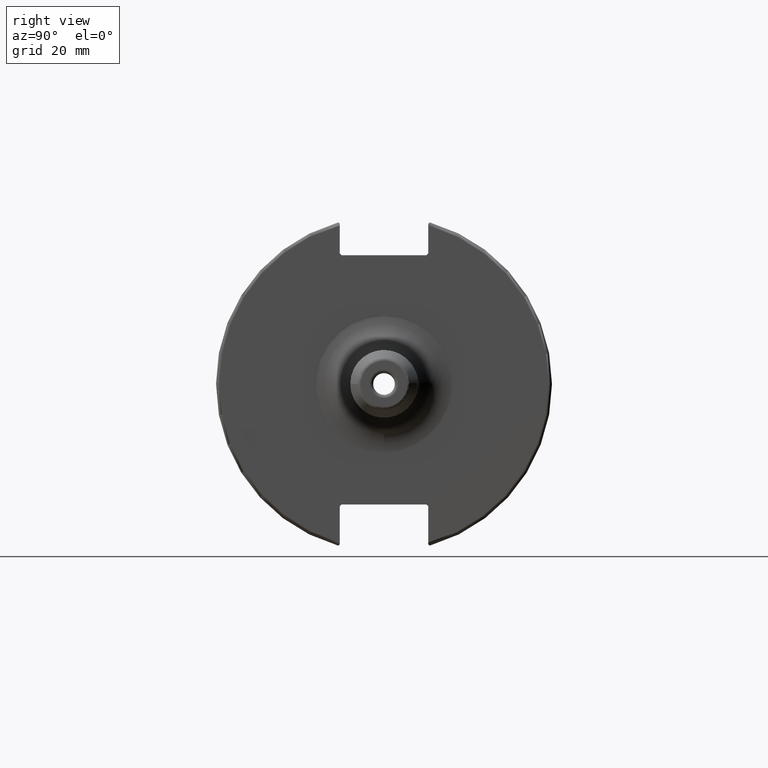
[diagram: clean part render]
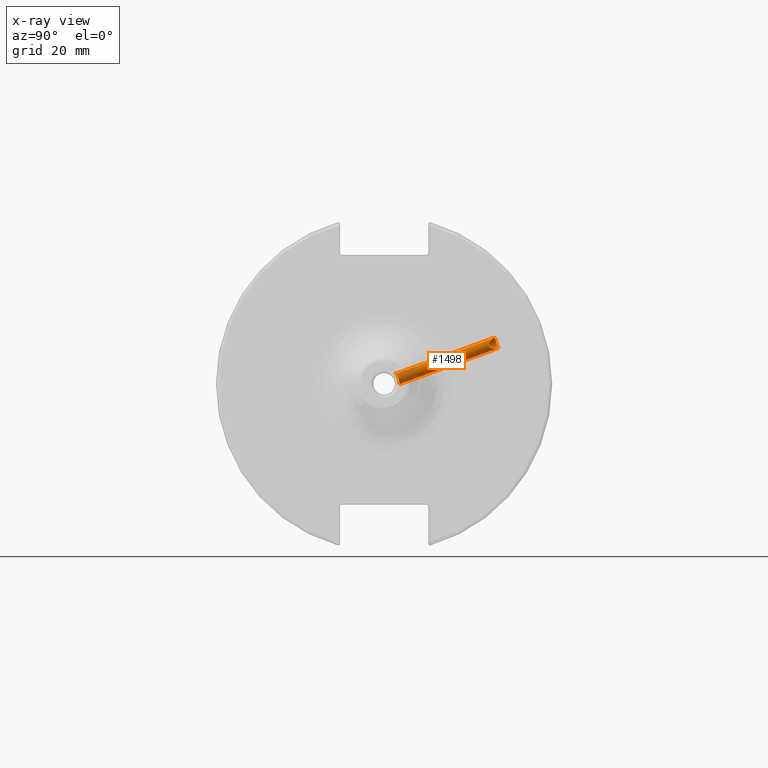
[diagram: x-ray — body ghosted, one internal face saturated and labeled with its STEP entity id]
A machine part, right view, then the same camera in x-ray: the body is ghosted and one INTERNAL B-rep face — a face not visible from any outside direction — is saturated and labeled: STEP entity #1498.
In plain terms, the highlighted cylindrical surface (bore or boss wall) has radius 1.621 mm, axis along (-0, 0.9397, 0.342).
Its self-contained STEP definition (entity closure, byte-faithful):
#108=CYLINDRICAL_SURFACE('',#1643,1.621);
#150=FACE_OUTER_BOUND('',#245,.T.);
#245=EDGE_LOOP('',(#1148,#1149,#1150,#1151,#1152,#1153));
#422=LINE('',#2688,#514);
#514=VECTOR('',#1905,1.621);
#581=B_SPLINE_CURVE_WITH_KNOTS('',3,(#2376,#2377,#2378,#2379,#2380,#2381,
#2382,#2383,#2384,#2385,#2386,#2387,#2388,#2389,#2390,#2391,#2392,#2393,
#2394,#2395,#2396,#2397,#2398,#2399,#2400,#2401),.UNSPECIFIED.,.F.,.F.,
(4,2,2,2,2,2,2,2,2,2,2,2,4),(0.,0.0616856599545253,0.123371319909051,0.18501720952834,
0.24666309914763,0.30830898876692,0.36995487838621,0.431640538340735,0.493326198295259,
0.555011858249784,0.61669751820431,0.678343407823599,0.739989297442889),
 .UNSPECIFIED.);
#582=B_SPLINE_CURVE_WITH_KNOTS('',3,(#2402,#2403,#2404,#2405,#2406,#2407,
#2408,#2409,#2410,#2411),.UNSPECIFIED.,.F.,.F.,(4,2,2,2,4),(0.739989297442889,
0.801635187062178,0.863281076681467,0.924966736635993,0.986652396590518),
 .UNSPECIFIED.);
#592=B_SPLINE_CURVE_WITH_KNOTS('',3,(#2644,#2645,#2646,#2647,#2648,#2649,
#2650,#2651,#2652,#2653,#2654,#2655,#2656,#2657,#2658,#2659,#2660,#2661,
#2662,#2663,#2664,#2665,#2666,#2667,#2668,#2669,#2670,#2671,#2672,#2673,
#2674,#2675),.UNSPECIFIED.,.F.,.F.,(4,2,2,2,2,2,2,2,2,2,2,2,2,2,2,4),(0.,
0.0884839677067705,0.176967935413541,0.264588928472714,0.292934680202631,
0.321280431932548,0.349626183662465,0.377971935392382,0.465592928451555,
0.554076896158326,0.642560863865096,0.674019283137882,0.705477702410669,
0.768394540956241,0.83753256912227,0.892424435682429),.UNSPECIFIED.);
#593=B_SPLINE_CURVE_WITH_KNOTS('',3,(#2676,#2677,#2678,#2679,#2680,#2681,
#2682,#2683,#2684,#2685,#2686,#2687),.UNSPECIFIED.,.F.,.F.,(4,2,2,2,2,4),
(0.892424435682429,0.947316302242587,1.01645433040862,1.07937116895419,
1.11082958822697,1.14228800749976),.UNSPECIFIED.);
#653=VERTEX_POINT('',#2374);
#654=VERTEX_POINT('',#2375);
#685=VERTEX_POINT('',#2642);
#686=VERTEX_POINT('',#2643);
#818=EDGE_CURVE('',#653,#654,#581,.T.);
#819=EDGE_CURVE('',#654,#653,#582,.T.);
#860=EDGE_CURVE('',#685,#686,#592,.T.);
#861=EDGE_CURVE('',#686,#685,#593,.T.);
#862=EDGE_CURVE('',#686,#654,#422,.T.);
#1148=ORIENTED_EDGE('',*,*,#860,.F.);
#1149=ORIENTED_EDGE('',*,*,#861,.F.);
#1150=ORIENTED_EDGE('',*,*,#862,.T.);
#1151=ORIENTED_EDGE('',*,*,#819,.T.);
#1152=ORIENTED_EDGE('',*,*,#818,.T.);
#1153=ORIENTED_EDGE('',*,*,#862,.F.);
#1498=ADVANCED_FACE('',(#150),#108,.F.);
#1643=AXIS2_PLACEMENT_3D('',#2641,#1903,#1904);
#1903=DIRECTION('center_axis',(-1.32999192572579E-16,0.939692620785908,
0.342020143325669));
#1904=DIRECTION('ref_axis',(1.,1.41534784492982E-16,0.));
#1905=DIRECTION('',(1.32999192572579E-16,-0.939692620785908,-0.342020143325669));
#2374=CARTESIAN_POINT('',(11.1341,4.49914969961848,-0.0874755990146017));
#2375=CARTESIAN_POINT('',(9.5131,4.22861679353659,1.53909064496551));
#2376=CARTESIAN_POINT('Ctrl Pts',(11.1341,4.49914969961848,-0.0874755990146017));
#2377=CARTESIAN_POINT('Ctrl Pts',(11.3397188665151,4.49914969961848,-0.087475599014602));
#2378=CARTESIAN_POINT('Ctrl Pts',(11.5576216434319,4.50065676407486,-0.0427920857514131));
#2379=CARTESIAN_POINT('Ctrl Pts',(11.9563617515399,4.49888934556196,0.133179145262921));
#2380=CARTESIAN_POINT('Ctrl Pts',(12.1373837449327,4.49467824604947,0.264037465820437));
#2381=CARTESIAN_POINT('Ctrl Pts',(12.4231642849261,4.46767151345674,0.558329117499045));
#2382=CARTESIAN_POINT('Ctrl Pts',(12.5476417213595,4.44296806180526,0.742015717586782));
#2383=CARTESIAN_POINT('Ctrl Pts',(12.7136582043263,4.35893050950099,1.13590375364647));
#2384=CARTESIAN_POINT('Ctrl Pts',(12.7551,4.29889724688001,1.34599668637541));
#2385=CARTESIAN_POINT('Ctrl Pts',(12.7551,4.15833634019316,1.73218460355561));
#2386=CARTESIAN_POINT('Ctrl Pts',(12.7136582043263,4.0692793533854,1.93171376459301));
#2387=CARTESIAN_POINT('Ctrl Pts',(12.5476417213595,3.88046950415846,2.28746780319715));
#2388=CARTESIAN_POINT('Ctrl Pts',(12.4231642849261,3.7813219754201,2.44405897510784));
#2389=CARTESIAN_POINT('Ctrl Pts',(12.1373837449326,3.61284330551637,2.68685905262126));
#2390=CARTESIAN_POINT('Ctrl Pts',(11.9563617515399,3.53195508781856,2.78980918451002));
#2391=CARTESIAN_POINT('Ctrl Pts',(11.5576216434319,3.42019688199173,2.92574704289858));
#2392=CARTESIAN_POINT('Ctrl Pts',(11.3397188665151,3.39032039495666,2.95900787757331));
#2393=CARTESIAN_POINT('Ctrl Pts',(10.9284811334849,3.39032039495666,2.95900787757331));
#2394=CARTESIAN_POINT('Ctrl Pts',(10.7105783565681,3.42019688199174,2.92574704289858));
#2395=CARTESIAN_POINT('Ctrl Pts',(10.3118382484601,3.53195508781856,2.78980918451001));
#2396=CARTESIAN_POINT('Ctrl Pts',(10.1308162550673,3.61284330551637,2.68685905262126));
#2397=CARTESIAN_POINT('Ctrl Pts',(9.84503571507393,3.7813219754201,2.44405897510784));
#2398=CARTESIAN_POINT('Ctrl Pts',(9.72055827864055,3.88046950415846,2.28746780319714));
#2399=CARTESIAN_POINT('Ctrl Pts',(9.55454179567368,4.0692793533854,1.931713764593));
#2400=CARTESIAN_POINT('Ctrl Pts',(9.5131,4.15833634019316,1.73218460355561));
#2401=CARTESIAN_POINT('Ctrl Pts',(9.5131,4.22861679353659,1.53909064496551));
#2402=CARTESIAN_POINT('Ctrl Pts',(9.5131,4.22861679353659,1.53909064496551));
#2403=CARTESIAN_POINT('Ctrl Pts',(9.5131,4.29889724688001,1.34599668637541));
#2404=CARTESIAN_POINT('Ctrl Pts',(9.55454179567368,4.35893050950099,1.13590375364647));
#2405=CARTESIAN_POINT('Ctrl Pts',(9.72055827864055,4.44296806180526,0.742015717586783));
#2406=CARTESIAN_POINT('Ctrl Pts',(9.84503571507393,4.46767151345674,0.558329117499046));
#2407=CARTESIAN_POINT('Ctrl Pts',(10.1308162550673,4.49467824604947,0.264037465820438));
#2408=CARTESIAN_POINT('Ctrl Pts',(10.3118382484601,4.49888934556196,0.133179145262924));
#2409=CARTESIAN_POINT('Ctrl Pts',(10.7105783565681,4.50065676407486,-0.0427920857514117));
#2410=CARTESIAN_POINT('Ctrl Pts',(10.9284811334849,4.49914969961848,-0.0874755990146016));
#2411=CARTESIAN_POINT('Ctrl Pts',(11.1341,4.49914969961848,-0.087475599014602));
#2641=CARTESIAN_POINT('Origin',(11.1341,21.5598376450015,7.84713915839248));
#2642=CARTESIAN_POINT('',(11.1341,33.313335016979,10.4000301811349));
#2643=CARTESIAN_POINT('',(9.5131,32.9255829555454,11.9839321416811));
#2644=CARTESIAN_POINT('Ctrl Pts',(11.1341,33.313335016979,10.4000301811349));
#2645=CARTESIAN_POINT('Ctrl Pts',(11.3757060767793,33.1543630852081,10.3421691298865));
#2646=CARTESIAN_POINT('Ctrl Pts',(11.5864820284691,32.9218505690671,10.3113735751054));
#2647=CARTESIAN_POINT('Ctrl Pts',(11.9681018879898,32.4180819286834,10.3035661598069));
#2648=CARTESIAN_POINT('Ctrl Pts',(12.1379400889368,32.1460311578073,10.3288989118134));
#2649=CARTESIAN_POINT('Ctrl Pts',(12.4213114787667,31.6460404618918,10.4484747155027));
#2650=CARTESIAN_POINT('Ctrl Pts',(12.5695213105869,31.350391478186,10.5645115156154));
#2651=CARTESIAN_POINT('Ctrl Pts',(12.6851350131118,31.0645202123338,10.797613403218));
#2652=CARTESIAN_POINT('Ctrl Pts',(12.7111094113745,30.9933030092018,10.8682275910532));
#2653=CARTESIAN_POINT('Ctrl Pts',(12.7461906022264,30.8732584943377,11.0286552191396));
#2654=CARTESIAN_POINT('Ctrl Pts',(12.7551,30.8247283204383,11.1187338581983));
#2655=CARTESIAN_POINT('Ctrl Pts',(12.7551,30.760096199976,11.2963091497399));
#2656=CARTESIAN_POINT('Ctrl Pts',(12.7461906022264,30.7393710369309,11.396507985113));
#2657=CARTESIAN_POINT('Ctrl Pts',(12.7111094113745,30.7282095788841,11.5965658048968));
#2658=CARTESIAN_POINT('Ctrl Pts',(12.6851350131118,30.7373751965893,11.6964369468632));
#2659=CARTESIAN_POINT('Ctrl Pts',(12.5695213105869,30.8065302860973,12.0587578601968));
#2660=CARTESIAN_POINT('Ctrl Pts',(12.4213114787667,30.9584235297988,12.3376867096629));
#2661=CARTESIAN_POINT('Ctrl Pts',(12.1379400889368,31.2645767789862,12.7506749139037));
#2662=CARTESIAN_POINT('Ctrl Pts',(11.9681018879898,31.4566961811531,12.944951792532));
#2663=CARTESIAN_POINT('Ctrl Pts',(11.5864820284691,31.8476238585542,13.2627872056147));
#2664=CARTESIAN_POINT('Ctrl Pts',(11.3757060767793,32.0455337805463,13.3886526064744));
#2665=CARTESIAN_POINT('Ctrl Pts',(11.0482025718087,32.2610244898072,13.4670848104063));
#2666=CARTESIAN_POINT('Ctrl Pts',(10.9546197272613,32.3146654550416,13.4792369583723));
#2667=CARTESIAN_POINT('Ctrl Pts',(10.7595056152646,32.4073631346194,13.4769601376887));
#2668=CARTESIAN_POINT('Ctrl Pts',(10.6579468329885,32.4463573573083,13.4623489695152));
#2669=CARTESIAN_POINT('Ctrl Pts',(10.3586687330207,32.5415491913672,13.3759423222779));
#2670=CARTESIAN_POINT('Ctrl Pts',(10.1659386735598,32.5780714501619,13.2587921009005));
#2671=CARTESIAN_POINT('Ctrl Pts',(9.84844561894806,32.6511585393986,12.9627897133043));
#2672=CARTESIAN_POINT('Ctrl Pts',(9.69712806088231,32.6986445558393,12.7362303482748));
#2673=CARTESIAN_POINT('Ctrl Pts',(9.55236126545399,32.799004604605,12.3622019181971));
#2674=CARTESIAN_POINT('Ctrl Pts',(9.5131,32.8630025419843,12.1558704148403));
#2675=CARTESIAN_POINT('Ctrl Pts',(9.5131,32.9255829555454,11.9839321416811));
#2676=CARTESIAN_POINT('Ctrl Pts',(9.5131,32.9255829555454,11.9839321416811));
#2677=CARTESIAN_POINT('Ctrl Pts',(9.5131,32.9881633691064,11.811993868522));
#2678=CARTESIAN_POINT('Ctrl Pts',(9.55236126545399,33.0717654386517,11.6127976857422));
#2679=CARTESIAN_POINT('Ctrl Pts',(9.69712806088231,33.235306021508,11.2617650894585));
#2680=CARTESIAN_POINT('Ctrl Pts',(9.84844561894806,33.3445591751872,11.0576871238396));
#2681=CARTESIAN_POINT('Ctrl Pts',(10.1659386735598,33.4788378837982,10.7839566642822));
#2682=CARTESIAN_POINT('Ctrl Pts',(10.3586687330207,33.5261629211717,10.6707383327549));
#2683=CARTESIAN_POINT('Ctrl Pts',(10.6579468329885,33.5087828678993,10.5433588693138));
#2684=CARTESIAN_POINT('Ctrl Pts',(10.7595056152646,33.4883034381597,10.5071010619333));
#2685=CARTESIAN_POINT('Ctrl Pts',(10.9546197272613,33.418756407954,10.4457719962213));
#2686=CARTESIAN_POINT('Ctrl Pts',(11.0482025718087,33.369853794469,10.4206013338184));
#2687=CARTESIAN_POINT('Ctrl Pts',(11.1341,33.313335016979,10.4000301811349));
#2688=CARTESIAN_POINT('',(9.5131,21.5598376450015,7.84713915839248));